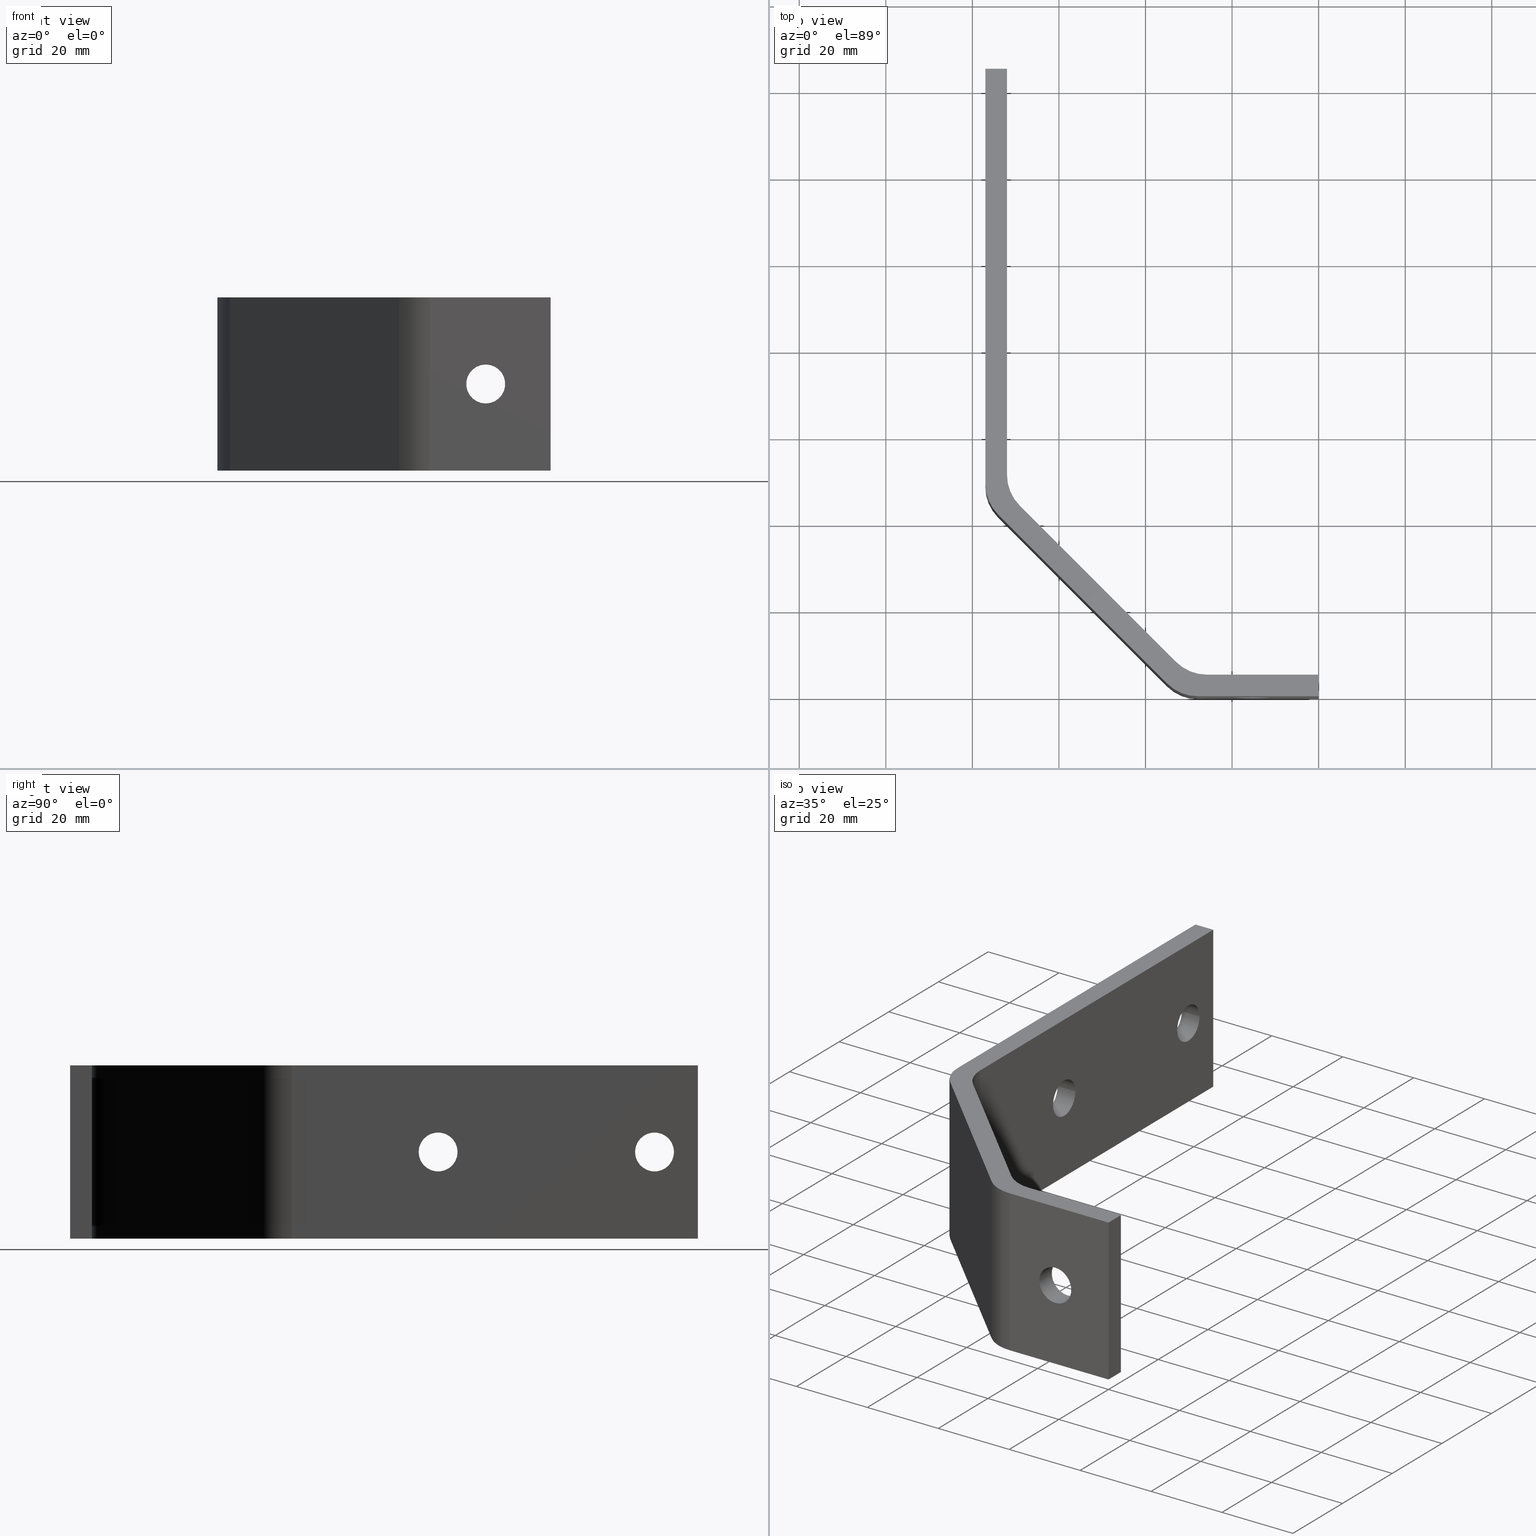
[diagram: canonical four-view strip — front | top / right | iso, engineering-drawing reading convention]
A machine part, canonical four-view strip (front | top / right | iso — engineering-drawing reading convention). The complete STEP part file that produces these views, byte-faithful:
ISO-10303-21;
HEADER;
FILE_DESCRIPTION (( 'STEP AP203' ),
    '1' );
FILE_NAME ('A47-21.STEP',
    '2018-04-03T11:41:19',
    ( 'User2' ),
    ( '' ),
    'SwSTEP 2.0',
    'SolidWorks 2007',
    '' );
FILE_SCHEMA (( 'CONFIG_CONTROL_DESIGN' ));
ENDSEC;

DATA;
#1 = DIRECTION ( 'NONE',  ( 1.000000000000000000, -1.541976423090493900E-015, 0.0000000000000000000 ) ) ;
#2 = DIRECTION ( 'NONE',  ( 0.0000000000000000000, 1.000000000000000000, 0.0000000000000000000 ) ) ;
#3 = DIRECTION ( 'NONE',  ( 0.0000000000000000000, 1.000000000000000000, 0.0000000000000000000 ) ) ;
#4 = VERTEX_POINT ( 'NONE', #542 ) ;
#5 = VERTEX_POINT ( 'NONE', #543 ) ;
#6 = VERTEX_POINT ( 'NONE', #544 ) ;
#7 = VERTEX_POINT ( 'NONE', #545 ) ;
#8 = VERTEX_POINT ( 'NONE', #546 ) ;
#9 = VERTEX_POINT ( 'NONE', #547 ) ;
#10 = VERTEX_POINT ( 'NONE', #548 ) ;
#11 = VERTEX_POINT ( 'NONE', #549 ) ;
#12 = VERTEX_POINT ( 'NONE', #550 ) ;
#13 = VERTEX_POINT ( 'NONE', #551 ) ;
#14 = VERTEX_POINT ( 'NONE', #552 ) ;
#15 = VERTEX_POINT ( 'NONE', #553 ) ;
#16 = VERTEX_POINT ( 'NONE', #554 ) ;
#17 = VERTEX_POINT ( 'NONE', #555 ) ;
#18 = VERTEX_POINT ( 'NONE', #223 ) ;
#19 = VERTEX_POINT ( 'NONE', #224 ) ;
#20 = VERTEX_POINT ( 'NONE', #225 ) ;
#21 = VERTEX_POINT ( 'NONE', #226 ) ;
#22 = VERTEX_POINT ( 'NONE', #227 ) ;
#23 = VERTEX_POINT ( 'NONE', #228 ) ;
#24 = VERTEX_POINT ( 'NONE', #229 ) ;
#25 = VERTEX_POINT ( 'NONE', #230 ) ;
#26 = VERTEX_POINT ( 'NONE', #231 ) ;
#27 = VERTEX_POINT ( 'NONE', #222 ) ;
#28 = VERTEX_POINT ( 'NONE', #221 ) ;
#29 = VERTEX_POINT ( 'NONE', #530 ) ;
#30 = VERTEX_POINT ( 'NONE', #529 ) ;
#31 = DESIGN_CONTEXT ( 'detailed design', #647, 'design' ) ;
#32 = PRODUCT_DEFINITION_SHAPE ( 'NONE', 'NONE',  #90 ) ;
#33 = CARTESIAN_POINT ( 'NONE',  ( -35.00000000140599400, 2.928932189675031300, 20.00000000000000000 ) ) ;
#34 = DIRECTION ( 'NONE',  ( -0.0000000000000000000, -0.0000000000000000000, 1.000000000000000000 ) ) ;
#35 = CARTESIAN_POINT ( 'NONE',  ( -35.00000000000000000, 2.928932188000000100, 40.00000000000000000 ) ) ;
#36 = DIRECTION ( 'NONE',  ( -0.7071067811865473500, 0.7071067811865477900, 0.0000000000000000000 ) ) ;
#37 = CARTESIAN_POINT ( 'NONE',  ( -77.00000000000000000, 139.5000000000000000, 20.00000000000000000 ) ) ;
#38 = DIRECTION ( 'NONE',  ( 1.000000000000000000, -1.541976423090493700E-015, 0.0000000000000000000 ) ) ;
#39 = CARTESIAN_POINT ( 'NONE',  ( -35.00000003499999200, 2.928932140000000100, 0.0000000000000000000 ) ) ;
#40 = DIRECTION ( 'NONE',  ( -0.7071067812317926000, 0.7071067811413024300, 0.0000000000000000000 ) ) ;
#41 = CARTESIAN_POINT ( 'NONE',  ( -13.96446609399999900, 0.0000000000000000000, 0.0000000000000000000 ) ) ;
#42 = DIRECTION ( 'NONE',  ( -1.000000000000000000, 0.0000000000000000000, 0.0000000000000000000 ) ) ;
#43 = CARTESIAN_POINT ( 'NONE',  ( -15.00000000000000000, 0.0000000000000000000, 20.00000000000000000 ) ) ;
#44 = DIRECTION ( 'NONE',  ( -0.0000000000000000000, -1.000000000000000000, -0.0000000000000000000 ) ) ;
#45 = DIRECTION ( 'NONE',  ( 0.0000000000000000000, 0.0000000000000000000, 1.000000000000000000 ) ) ;
#46 = CARTESIAN_POINT ( 'NONE',  ( -27.92893218799999700, 0.0000000000000000000, 20.00000000000000000 ) ) ;
#47 = DIRECTION ( 'NONE',  ( 0.0000000000000000000, 0.0000000000000000000, 1.000000000000000000 ) ) ;
#48 = CARTESIAN_POINT ( 'NONE',  ( -27.92893218799999700, 10.00000000000000000, 40.00000000000000000 ) ) ;
#49 = DIRECTION ( 'NONE',  ( 0.0000000000000000000, -3.469446951953610700E-016, -1.000000000000000000 ) ) ;
#50 = AXIS2_PLACEMENT_3D ( 'NONE', #48, #49, #697 ) ;
#51 = AXIS2_PLACEMENT_3D ( 'NONE', #43, #44, #45 ) ;
#52 = AXIS2_PLACEMENT_3D ( 'NONE', #214, #215, #216 ) ;
#53 = AXIS2_PLACEMENT_3D ( 'NONE', #211, #212, #213 ) ;
#54 = AXIS2_PLACEMENT_3D ( 'NONE', #208, #209, #210 ) ;
#55 = AXIS2_PLACEMENT_3D ( 'NONE', #201, #202, #203 ) ;
#56 = AXIS2_PLACEMENT_3D ( 'NONE', #565, #566, #567 ) ;
#57 = AXIS2_PLACEMENT_3D ( 'NONE', #556, #557, #558 ) ;
#58 = AXIS2_PLACEMENT_3D ( 'NONE', #585, #586, #587 ) ;
#59 = AXIS2_PLACEMENT_3D ( 'NONE', #582, #583, #584 ) ;
#60 = AXIS2_PLACEMENT_3D ( 'NONE', #579, #580, #581 ) ;
#61 = AXIS2_PLACEMENT_3D ( 'NONE', #576, #577, #578 ) ;
#62 = AXIS2_PLACEMENT_3D ( 'NONE', #220, #219, #573 ) ;
#63 = AXIS2_PLACEMENT_3D ( 'NONE', #531, #1, #2 ) ;
#64 = EDGE_CURVE ( 'NONE', #9, #537, #415, .T. ) ;
#65 = EDGE_CURVE ( 'NONE', #6, #13, #416, .T. ) ;
#66 = EDGE_CURVE ( 'NONE', #4, #13, #411, .T. ) ;
#67 = EDGE_CURVE ( 'NONE', #5, #4, #413, .T. ) ;
#68 = EDGE_CURVE ( 'NONE', #6, #5, #408, .T. ) ;
#69 = EDGE_CURVE ( 'NONE', #11, #536, #407, .T. ) ;
#70 = EDGE_CURVE ( 'NONE', #535, #12, #406, .T. ) ;
#71 = EDGE_CURVE ( 'NONE', #12, #535, #404, .T. ) ;
#72 = EDGE_CURVE ( 'NONE', #541, #534, #405, .T. ) ;
#73 = EDGE_CURVE ( 'NONE', #538, #539, #401, .T. ) ;
#74 = EDGE_CURVE ( 'NONE', #536, #539, #402, .T. ) ;
#75 = PRODUCT_RELATED_PRODUCT_CATEGORY ( 'detail', '', ( #695 ) ) ;
#76 = CC_DESIGN_SECURITY_CLASSIFICATION ( #246, ( #85 ) ) ;
#77 = CC_DESIGN_APPROVAL ( #78, ( #246 ) ) ;
#78 = APPROVAL ( #615, 'UNSPECIFIED' ) ;
#79 = CC_DESIGN_DATE_AND_TIME_ASSIGNMENT ( #241, #614, ( #246 ) ) ;
#80 = CC_DESIGN_PERSON_AND_ORGANIZATION_ASSIGNMENT ( #245, #613, ( #246 ) ) ;
#81 = CC_DESIGN_PERSON_AND_ORGANIZATION_ASSIGNMENT ( #247, #611, ( #85 ) ) ;
#82 = CC_DESIGN_PERSON_AND_ORGANIZATION_ASSIGNMENT ( #248, #610, ( #85 ) ) ;
#83 = CC_DESIGN_APPROVAL ( #84, ( #85 ) ) ;
#84 = APPROVAL ( #653, 'UNSPECIFIED' ) ;
#85 = PRODUCT_DEFINITION_FORMATION_WITH_SPECIFIED_SOURCE ( 'ANY', '', #695, .NOT_KNOWN. ) ;
#86 = CC_DESIGN_DATE_AND_TIME_ASSIGNMENT ( #256, #652, ( #90 ) ) ;
#87 = CC_DESIGN_PERSON_AND_ORGANIZATION_ASSIGNMENT ( #291, #651, ( #90 ) ) ;
#88 = CC_DESIGN_APPROVAL ( #89, ( #90 ) ) ;
#89 = APPROVAL ( #649, 'UNSPECIFIED' ) ;
#90 = PRODUCT_DEFINITION ( 'UNKNOWN', '', #85, #31 ) ;
#91 = CC_DESIGN_PERSON_AND_ORGANIZATION_ASSIGNMENT ( #232, #646, ( #695 ) ) ;
#92 = AXIS2_PLACEMENT_3D ( 'NONE', #640, #641, #642 ) ;
#93 = AXIS2_PLACEMENT_3D ( 'NONE', #634, #635, #636 ) ;
#94 = AXIS2_PLACEMENT_3D ( 'NONE', #631, #632, #633 ) ;
#95 = AXIS2_PLACEMENT_3D ( 'NONE', #628, #629, #630 ) ;
#96 = AXIS2_PLACEMENT_3D ( 'NONE', #624, #625, #626 ) ;
#97 = AXIS2_PLACEMENT_3D ( 'NONE', #621, #622, #623 ) ;
#98 = AXIS2_PLACEMENT_3D ( 'NONE', #618, #619, #620 ) ;
#99 = AXIS2_PLACEMENT_3D ( 'NONE', #692, #693, #694 ) ;
#100 = AXIS2_PLACEMENT_3D ( 'NONE', #688, #689, #690 ) ;
#101 = AXIS2_PLACEMENT_3D ( 'NONE', #684, #685, #686 ) ;
#102 = AXIS2_PLACEMENT_3D ( 'NONE', #680, #681, #682 ) ;
#103 = AXIS2_PLACEMENT_3D ( 'NONE', #677, #678, #679 ) ;
#104 = AXIS2_PLACEMENT_3D ( 'NONE', #673, #674, #675 ) ;
#105 = AXIS2_PLACEMENT_3D ( 'NONE', #669, #670, #671 ) ;
#106 = AXIS2_PLACEMENT_3D ( 'NONE', #666, #667, #668 ) ;
#107 = AXIS2_PLACEMENT_3D ( 'NONE', #662, #663, #664 ) ;
#108 = AXIS2_PLACEMENT_3D ( 'NONE', #659, #660, #661 ) ;
#109 = AXIS2_PLACEMENT_3D ( 'NONE', #655, #656, #657 ) ;
#110 = AXIS2_PLACEMENT_3D ( 'NONE', #196, #197, #198 ) ;
#111 = AXIS2_PLACEMENT_3D ( 'NONE', #183, #184, #185 ) ;
#112 = AXIS2_PLACEMENT_3D ( 'NONE', #180, #181, #182 ) ;
#113 = AXIS2_PLACEMENT_3D ( 'NONE', #731, #162, #163 ) ;
#114 = AXIS2_PLACEMENT_3D ( 'NONE', #728, #729, #730 ) ;
#115 = AXIS2_PLACEMENT_3D ( 'NONE', #721, #722, #723 ) ;
#116 = AXIS2_PLACEMENT_3D ( 'NONE', #718, #719, #720 ) ;
#117 = AXIS2_PLACEMENT_3D ( 'NONE', #715, #716, #717 ) ;
#118 = AXIS2_PLACEMENT_3D ( 'NONE', #698, #699, #700 ) ;
#119 = EDGE_CURVE ( 'NONE', #21, #27, #398, .T. ) ;
#120 = EDGE_CURVE ( 'NONE', #26, #21, #396, .T. ) ;
#121 = EDGE_CURVE ( 'NONE', #28, #21, #392, .T. ) ;
#122 = EDGE_CURVE ( 'NONE', #27, #25, #393, .T. ) ;
#123 = EDGE_CURVE ( 'NONE', #26, #23, #390, .T. ) ;
#124 = EDGE_CURVE ( 'NONE', #23, #24, #388, .T. ) ;
#125 = EDGE_CURVE ( 'NONE', #29, #27, #384, .T. ) ;
#126 = EDGE_CURVE ( 'NONE', #535, #9, #386, .T. ) ;
#127 = EDGE_CURVE ( 'NONE', #11, #538, #382, .T. ) ;
#128 = EDGE_CURVE ( 'NONE', #539, #538, #377, .T. ) ;
#129 = EDGE_CURVE ( 'NONE', #537, #9, #376, .T. ) ;
#130 = EDGE_CURVE ( 'NONE', #536, #11, #374, .T. ) ;
#131 = EDGE_CURVE ( 'NONE', #8, #7, #375, .T. ) ;
#132 = EDGE_CURVE ( 'NONE', #7, #541, #372, .T. ) ;
#133 = EDGE_CURVE ( 'NONE', #12, #537, #370, .T. ) ;
#134 = EDGE_CURVE ( 'NONE', #8, #534, #368, .T. ) ;
#135 = EDGE_CURVE ( 'NONE', #24, #20, #366, .T. ) ;
#136 = EDGE_CURVE ( 'NONE', #5, #6, #363, .T. ) ;
#137 = EDGE_CURVE ( 'NONE', #20, #22, #364, .T. ) ;
#138 = EDGE_CURVE ( 'NONE', #22, #7, #359, .T. ) ;
#139 = EDGE_CURVE ( 'NONE', #13, #4, #356, .T. ) ;
#140 = EDGE_CURVE ( 'NONE', #25, #24, #357, .T. ) ;
#141 = EDGE_CURVE ( 'NONE', #18, #29, #354, .T. ) ;
#142 = EDGE_CURVE ( 'NONE', #29, #28, #352, .T. ) ;
#143 = EDGE_CURVE ( 'NONE', #30, #28, #350, .T. ) ;
#144 = EDGE_CURVE ( 'NONE', #533, #10, #348, .T. ) ;
#145 = EDGE_CURVE ( 'NONE', #22, #23, #345, .T. ) ;
#146 = EDGE_CURVE ( 'NONE', #17, #10, #342, .T. ) ;
#147 = EDGE_CURVE ( 'NONE', #20, #8, #340, .T. ) ;
#148 = EDGE_CURVE ( 'NONE', #16, #18, #339, .T. ) ;
#149 = EDGE_CURVE ( 'NONE', #19, #30, #337, .T. ) ;
#150 = EDGE_CURVE ( 'NONE', #540, #15, #338, .T. ) ;
#151 = EDGE_CURVE ( 'NONE', #16, #19, #335, .T. ) ;
#152 = EDGE_CURVE ( 'NONE', #534, #14, #333, .T. ) ;
#153 = EDGE_CURVE ( 'NONE', #541, #540, #331, .T. ) ;
#154 = EDGE_CURVE ( 'NONE', #540, #14, #332, .T. ) ;
#155 = EDGE_CURVE ( 'NONE', #14, #533, #328, .T. ) ;
#156 = EDGE_CURVE ( 'NONE', #15, #533, #325, .T. ) ;
#157 = EDGE_CURVE ( 'NONE', #10, #16, #323, .T. ) ;
#158 = EDGE_CURVE ( 'NONE', #17, #19, #320, .T. ) ;
#159 = EDGE_CURVE ( 'NONE', #30, #18, #317, .T. ) ;
#160 = EDGE_CURVE ( 'NONE', #15, #17, #315, .T. ) ;
#161 = EDGE_CURVE ( 'NONE', #25, #26, #313, .T. ) ;
#162 = DIRECTION ( 'NONE',  ( 0.0000000000000000000, -3.469446951953617100E-016, -1.000000000000000000 ) ) ;
#163 = DIRECTION ( 'NONE',  ( 0.0000000000000000000, 1.000000000000000000, -6.938893903907232300E-016 ) ) ;
#164 = CARTESIAN_POINT ( 'NONE',  ( -77.00000000000000000, 49.07106781199999500, 20.00000000000000000 ) ) ;
#165 = DIRECTION ( 'NONE',  ( 0.0000000000000000000, 0.0000000000000000000, -1.000000000000000000 ) ) ;
#166 = CARTESIAN_POINT ( 'NONE',  ( -77.00000000000000000, 72.50000000000000000, 0.0000000000000000000 ) ) ;
#167 = DIRECTION ( 'NONE',  ( 0.0000000000000000000, 1.000000000000000000, 0.0000000000000000000 ) ) ;
#168 = CARTESIAN_POINT ( 'NONE',  ( -77.00000000000000000, 145.0000000000000000, 20.00000000000000000 ) ) ;
#169 = DIRECTION ( 'NONE',  ( 0.0000000000000000000, 0.0000000000000000000, -1.000000000000000000 ) ) ;
#170 = CARTESIAN_POINT ( 'NONE',  ( -71.99999999499999600, 72.50000000000000000, 0.0000000000000000000 ) ) ;
#171 = DIRECTION ( 'NONE',  ( -0.0000000000000000000, -1.000000000000000000, -0.0000000000000000000 ) ) ;
#172 = CARTESIAN_POINT ( 'NONE',  ( -71.99999999499999600, 72.50000000000000000, 40.00000000000000000 ) ) ;
#173 = DIRECTION ( 'NONE',  ( -0.0000000000000000000, -1.000000000000000000, -0.0000000000000000000 ) ) ;
#174 = CARTESIAN_POINT ( 'NONE',  ( -69.07106781199998100, 44.07106781199999500, 20.00000000000000000 ) ) ;
#175 = DIRECTION ( 'NONE',  ( -0.0000000000000000000, -0.0000000000000000000, -1.000000000000000000 ) ) ;
#176 = CARTESIAN_POINT ( 'NONE',  ( -38.50000000000000000, 145.0000000000000000, 40.00000000000000000 ) ) ;
#177 = DIRECTION ( 'NONE',  ( 1.000000000000000000, -0.0000000000000000000, -0.0000000000000000000 ) ) ;
#178 = CARTESIAN_POINT ( 'NONE',  ( 0.0000000000000000000, 5.000000000000000000, 20.00000000000000000 ) ) ;
#179 = DIRECTION ( 'NONE',  ( 0.0000000000000000000, 0.0000000000000000000, 1.000000000000000000 ) ) ;
#180 = CARTESIAN_POINT ( 'NONE',  ( -77.00000000000000000, 135.0000000000000000, 20.00000000000000000 ) ) ;
#181 = DIRECTION ( 'NONE',  ( 1.000000000000000000, -1.541976423090493900E-015, 0.0000000000000000000 ) ) ;
#182 = DIRECTION ( 'NONE',  ( 0.0000000000000000000, 1.000000000000000000, 0.0000000000000000000 ) ) ;
#183 = CARTESIAN_POINT ( 'NONE',  ( -15.00000000000000000, 0.0000000000000000000, 20.00000000000000000 ) ) ;
#184 = DIRECTION ( 'NONE',  ( 0.0000000000000000000, 1.000000000000000000, 0.0000000000000000000 ) ) ;
#185 = DIRECTION ( 'NONE',  ( 0.0000000000000000000, 0.0000000000000000000, 1.000000000000000000 ) ) ;
#186 = CARTESIAN_POINT ( 'NONE',  ( -77.00000000000000000, 145.0000000000000000, 0.0000000000000000000 ) ) ;
#187 = CARTESIAN_POINT ( 'NONE',  ( -74.07106783447677900, 41.99999997861128500, 2.961358217058114000E-015 ) ) ;
#188 = CARTESIAN_POINT ( 'NONE',  ( -77.00000000000001400, 130.5000000000000000, 20.00000000000000000 ) ) ;
#189 = CARTESIAN_POINT ( 'NONE',  ( -77.00000000000001400, 80.50000000000000000, 20.00000000000000000 ) ) ;
#190 = CARTESIAN_POINT ( 'NONE',  ( -72.00000000000001400, 139.5000000000000000, 20.00000000000000000 ) ) ;
#191 = CARTESIAN_POINT ( 'NONE',  ( -72.00000000000000000, 89.50000000000000000, 20.00000000000000000 ) ) ;
#192 = CARTESIAN_POINT ( 'NONE',  ( -72.00000000000002800, 80.49999999999998600, 20.00000000000000000 ) ) ;
#193 = CARTESIAN_POINT ( 'NONE',  ( -77.00000000000000000, 49.07106781199999500, 40.00000000000000000 ) ) ;
#194 = CARTESIAN_POINT ( 'NONE',  ( -74.07106781270299200, 42.00000000083753100, 40.00000000000000700 ) ) ;
#195 = PLANE ( 'NONE',  #110 ) ;
#196 = CARTESIAN_POINT ( 'NONE',  ( -77.00000000000000000, 145.0000000000000000, 40.00000000000000000 ) ) ;
#197 = DIRECTION ( 'NONE',  ( 0.0000000000000000000, -1.000000000000000000, 0.0000000000000000000 ) ) ;
#198 = DIRECTION ( 'NONE',  ( 0.0000000000000000000, 0.0000000000000000000, -1.000000000000000000 ) ) ;
#199 = PLANE ( 'NONE',  #109 ) ;
#200 = DIRECTION ( 'NONE',  ( -0.0000000000000000000, -0.0000000000000000000, -1.000000000000000000 ) ) ;
#201 = CARTESIAN_POINT ( 'NONE',  ( -25.85786437600000600, 15.00000000000000000, 0.0000000000000000000 ) ) ;
#202 = DIRECTION ( 'NONE',  ( 0.0000000000000000000, -0.0000000000000000000, 1.000000000000000000 ) ) ;
#203 = DIRECTION ( 'NONE',  ( 1.000000000000000000, 0.0000000000000000000, 0.0000000000000000000 ) ) ;
#204 = CARTESIAN_POINT ( 'NONE',  ( -77.00000000000000000, 130.5000000000000000, 20.00000000000000000 ) ) ;
#205 = DIRECTION ( 'NONE',  ( 1.000000000000000000, -1.541976423090493700E-015, 0.0000000000000000000 ) ) ;
#206 = CARTESIAN_POINT ( 'NONE',  ( -76.99999999999998600, 89.50000000000001400, 20.00000000000000000 ) ) ;
#207 = DIRECTION ( 'NONE',  ( 1.000000000000000000, -1.541976423090496200E-015, 0.0000000000000000000 ) ) ;
#208 = CARTESIAN_POINT ( 'NONE',  ( -72.00000000000001400, 84.99999999999998600, 20.00000000000000000 ) ) ;
#209 = DIRECTION ( 'NONE',  ( 1.000000000000000000, -1.541976423090496200E-015, 0.0000000000000000000 ) ) ;
#210 = DIRECTION ( 'NONE',  ( 3.083952846180988100E-015, 1.000000000000000000, 0.0000000000000000000 ) ) ;
#211 = CARTESIAN_POINT ( 'NONE',  ( -72.00000000000001400, 135.0000000000000000, 20.00000000000000000 ) ) ;
#212 = DIRECTION ( 'NONE',  ( 1.000000000000000000, -1.541976423090493900E-015, 0.0000000000000000000 ) ) ;
#213 = DIRECTION ( 'NONE',  ( 0.0000000000000000000, 1.000000000000000000, 0.0000000000000000000 ) ) ;
#214 = CARTESIAN_POINT ( 'NONE',  ( -77.00000000000000000, 85.00000000000000000, 20.00000000000000000 ) ) ;
#215 = DIRECTION ( 'NONE',  ( -1.000000000000000000, 1.541976423090496200E-015, -0.0000000000000000000 ) ) ;
#216 = DIRECTION ( 'NONE',  ( 3.083952846180988100E-015, 1.000000000000000000, 0.0000000000000000000 ) ) ;
#217 = ADVANCED_FACE ( 'NONE', ( #310 ), #309, .F. ) ;
#218 = ADVANCED_FACE ( 'NONE', ( #307 ), #306, .F. ) ;
#219 = DIRECTION ( 'NONE',  ( 0.0000000000000000000, 1.000000000000000000, 0.0000000000000000000 ) ) ;
#220 = CARTESIAN_POINT ( 'NONE',  ( -15.00000000000000000, 5.000000000000000000, 20.00000000000000000 ) ) ;
#221 = CARTESIAN_POINT ( 'NONE',  ( -32.92893218788764600, 7.928932188022149500, 40.00000000000000000 ) ) ;
#222 = CARTESIAN_POINT ( 'NONE',  ( -25.85786437600000600, 5.000000000000000900, 0.0000000000000000000 ) ) ;
#223 = CARTESIAN_POINT ( 'NONE',  ( -69.07106780773366900, 44.07106781773367000, 0.0000000000000000000 ) ) ;
#224 = CARTESIAN_POINT ( 'NONE',  ( -71.99999999749999800, 51.14213562194898100, 40.00000000000000000 ) ) ;
#225 = CARTESIAN_POINT ( 'NONE',  ( -27.92893218799999400, 1.734723475976807100E-015, -2.602085213965215400E-015 ) ) ;
#226 = CARTESIAN_POINT ( 'NONE',  ( -25.85786437600000600, 5.000000000000000900, 40.00000000000000000 ) ) ;
#227 = CARTESIAN_POINT ( 'NONE',  ( -27.92893218799999700, 1.734723475976807100E-015, 40.00000000000000700 ) ) ;
#228 = CARTESIAN_POINT ( 'NONE',  ( -1.734723475976807100E-015, 0.0000000000000000000, 40.00000000000000000 ) ) ;
#229 = CARTESIAN_POINT ( 'NONE',  ( -1.734723475976807100E-015, 0.0000000000000000000, -1.156482317317871300E-015 ) ) ;
#230 = CARTESIAN_POINT ( 'NONE',  ( 0.0000000000000000000, 5.000000000000001800, 0.0000000000000000000 ) ) ;
#231 = CARTESIAN_POINT ( 'NONE',  ( 0.0000000000000000000, 5.000000000000001800, 40.00000000000000000 ) ) ;
#232 = PERSON_AND_ORGANIZATION ( #696, #233 ) ;
#233 = ORGANIZATION ( 'UNSPECIFIED', 'UNSPECIFIED', '' ) ;
#234 = APPROVAL_DATE_TIME ( #235, #78 ) ;
#235 = DATE_AND_TIME ( #236, #237 ) ;
#236 = CALENDAR_DATE ( 2018, 3, 4 ) ;
#237 = LOCAL_TIME ( 8, 41, 19.00000000000000000, #238 ) ;
#238 = COORDINATED_UNIVERSAL_TIME_OFFSET ( 3, 0, .BEHIND. ) ;
#239 = APPROVAL_PERSON_ORGANIZATION ( #240, #78, #616 ) ;
#240 = PERSON_AND_ORGANIZATION ( #696, #233 ) ;
#241 = DATE_AND_TIME ( #242, #243 ) ;
#242 = CALENDAR_DATE ( 2018, 3, 4 ) ;
#243 = LOCAL_TIME ( 8, 41, 19.00000000000000000, #244 ) ;
#244 = COORDINATED_UNIVERSAL_TIME_OFFSET ( 3, 0, .BEHIND. ) ;
#245 = PERSON_AND_ORGANIZATION ( #696, #233 ) ;
#246 = SECURITY_CLASSIFICATION ( '', '', #612 ) ;
#247 = PERSON_AND_ORGANIZATION ( #696, #233 ) ;
#248 = PERSON_AND_ORGANIZATION ( #696, #233 ) ;
#249 = APPROVAL_DATE_TIME ( #250, #84 ) ;
#250 = DATE_AND_TIME ( #251, #252 ) ;
#251 = CALENDAR_DATE ( 2018, 3, 4 ) ;
#252 = LOCAL_TIME ( 8, 41, 19.00000000000000000, #253 ) ;
#253 = COORDINATED_UNIVERSAL_TIME_OFFSET ( 3, 0, .BEHIND. ) ;
#254 = APPROVAL_PERSON_ORGANIZATION ( #255, #84, #654 ) ;
#255 = PERSON_AND_ORGANIZATION ( #696, #233 ) ;
#256 = DATE_AND_TIME ( #257, #258 ) ;
#257 = CALENDAR_DATE ( 2018, 3, 4 ) ;
#258 = LOCAL_TIME ( 8, 41, 19.00000000000000000, #288 ) ;
#259 = SHAPE_DEFINITION_REPRESENTATION ( #32, #608 ) ;
#260 =( GEOMETRIC_REPRESENTATION_CONTEXT ( 3 ) GLOBAL_UNCERTAINTY_ASSIGNED_CONTEXT ( ( #617 ) ) GLOBAL_UNIT_ASSIGNED_CONTEXT ( ( #637, #638, #639 ) ) REPRESENTATION_CONTEXT ( 'NONE', 'WORKASPACE' ) );
#261 = CYLINDRICAL_SURFACE ( 'NONE', #93, 4.500000000000003600 ) ;
#262 = FACE_OUTER_BOUND ( 'NONE', #445, .T. ) ;
#263 = CYLINDRICAL_SURFACE ( 'NONE', #94, 4.500000000000003600 ) ;
#264 = FACE_OUTER_BOUND ( 'NONE', #443, .T. ) ;
#265 = FACE_OUTER_BOUND ( 'NONE', #442, .T. ) ;
#266 = CYLINDRICAL_SURFACE ( 'NONE', #96, 9.999999999999994700 ) ;
#267 = FACE_OUTER_BOUND ( 'NONE', #522, .T. ) ;
#268 = CYLINDRICAL_SURFACE ( 'NONE', #97, 4.500000000000003600 ) ;
#269 = FACE_OUTER_BOUND ( 'NONE', #444, .T. ) ;
#270 = CYLINDRICAL_SURFACE ( 'NONE', #98, 4.500000000000000900 ) ;
#271 = FACE_OUTER_BOUND ( 'NONE', #379, .T. ) ;
#272 = FACE_OUTER_BOUND ( 'NONE', #381, .T. ) ;
#273 = FACE_BOUND ( 'NONE', #312, .T. ) ;
#274 = FACE_OUTER_BOUND ( 'NONE', #318, .T. ) ;
#275 = FACE_BOUND ( 'NONE', #322, .T. ) ;
#276 = FACE_OUTER_BOUND ( 'NONE', #326, .T. ) ;
#277 = CYLINDRICAL_SURFACE ( 'NONE', #102, 10.00000000000000500 ) ;
#278 = FACE_OUTER_BOUND ( 'NONE', #330, .T. ) ;
#279 = FACE_OUTER_BOUND ( 'NONE', #292, .T. ) ;
#280 = CYLINDRICAL_SURFACE ( 'NONE', #105, 10.00000000000001100 ) ;
#281 = FACE_OUTER_BOUND ( 'NONE', #293, .T. ) ;
#282 = PERSON_AND_ORGANIZATION ( #696, #233 ) ;
#283 = APPROVAL_PERSON_ORGANIZATION ( #282, #89, #650 ) ;
#284 = COORDINATED_UNIVERSAL_TIME_OFFSET ( 3, 0, .BEHIND. ) ;
#285 = LOCAL_TIME ( 8, 41, 19.00000000000000000, #284 ) ;
#286 = CALENDAR_DATE ( 2018, 3, 4 ) ;
#287 = DATE_AND_TIME ( #286, #285 ) ;
#288 = COORDINATED_UNIVERSAL_TIME_OFFSET ( 3, 0, .BEHIND. ) ;
#289 = APPROVAL_DATE_TIME ( #287, #89 ) ;
#290 = FACE_OUTER_BOUND ( 'NONE', #300, .T. ) ;
#291 = PERSON_AND_ORGANIZATION ( #696, #233 ) ;
#292 = EDGE_LOOP ( 'NONE', ( #432, #433, #434, #435, #436, #437, #438, #439, #471, #472, #473, #474 ) ) ;
#293 = EDGE_LOOP ( 'NONE', ( #427, #429, #430, #431 ) ) ;
#294 = FACE_OUTER_BOUND ( 'NONE', #303, .T. ) ;
#295 = CYLINDRICAL_SURFACE ( 'NONE', #107, 9.999999999999994700 ) ;
#296 = FACE_OUTER_BOUND ( 'NONE', #308, .T. ) ;
#297 = FACE_OUTER_BOUND ( 'NONE', #528, .T. ) ;
#298 = FACE_BOUND ( 'NONE', #527, .T. ) ;
#299 = FACE_BOUND ( 'NONE', #526, .T. ) ;
#300 = EDGE_LOOP ( 'NONE', ( #421, #424, #425, #426 ) ) ;
#301 = FACE_OUTER_BOUND ( 'NONE', #524, .T. ) ;
#302 = FACE_BOUND ( 'NONE', #523, .T. ) ;
#303 = EDGE_LOOP ( 'NONE', ( #479, #480, #478, #477 ) ) ;
#304 = FACE_BOUND ( 'NONE', #521, .T. ) ;
#305 = FACE_OUTER_BOUND ( 'NONE', #525, .T. ) ;
#306 = CYLINDRICAL_SURFACE ( 'NONE', #111, 4.500000000000000900 ) ;
#307 = FACE_OUTER_BOUND ( 'NONE', #447, .T. ) ;
#308 = EDGE_LOOP ( 'NONE', ( #511, #510, #509, #508 ) ) ;
#309 = CYLINDRICAL_SURFACE ( 'NONE', #112, 4.500000000000003600 ) ;
#310 = FACE_OUTER_BOUND ( 'NONE', #446, .T. ) ;
#311 = VECTOR ( 'NONE', #179, 1000.000000000000000 ) ;
#312 = EDGE_LOOP ( 'NONE', ( #503, #491 ) ) ;
#313 = LINE ( 'NONE', #178, #311 ) ;
#314 = VECTOR ( 'NONE', #177, 1000.000000000000000 ) ;
#315 = LINE ( 'NONE', #176, #314 ) ;
#316 = VECTOR ( 'NONE', #175, 1000.000000000000000 ) ;
#317 = LINE ( 'NONE', #174, #316 ) ;
#318 = EDGE_LOOP ( 'NONE', ( #504, #492, #502, #505 ) ) ;
#319 = VECTOR ( 'NONE', #173, 1000.000000000000000 ) ;
#320 = LINE ( 'NONE', #172, #319 ) ;
#321 = VECTOR ( 'NONE', #171, 1000.000000000000000 ) ;
#322 = EDGE_LOOP ( 'NONE', ( #361, #378 ) ) ;
#323 = LINE ( 'NONE', #170, #321 ) ;
#324 = VECTOR ( 'NONE', #169, 1000.000000000000000 ) ;
#325 = LINE ( 'NONE', #168, #324 ) ;
#326 = EDGE_LOOP ( 'NONE', ( #487, #488, #489, #490, #499, #500, #501, #423, #428, #506, #507, #360 ) ) ;
#327 = VECTOR ( 'NONE', #167, 1000.000000000000000 ) ;
#328 = LINE ( 'NONE', #166, #327 ) ;
#329 = VECTOR ( 'NONE', #165, 1000.000000000000000 ) ;
#330 = EDGE_LOOP ( 'NONE', ( #475, #484, #485, #486 ) ) ;
#331 = CIRCLE ( 'NONE', #113, 9.999999999999994700 ) ;
#332 = LINE ( 'NONE', #164, #329 ) ;
#333 = CIRCLE ( 'NONE', #114, 9.999999999999994700 ) ;
#334 = VECTOR ( 'NONE', #727, 1000.000000000000000 ) ;
#335 = LINE ( 'NONE', #726, #334 ) ;
#336 = VECTOR ( 'NONE', #725, 1000.000000000000000 ) ;
#337 = CIRCLE ( 'NONE', #115, 9.999999999999994700 ) ;
#338 = LINE ( 'NONE', #724, #336 ) ;
#339 = CIRCLE ( 'NONE', #116, 9.999999999999994700 ) ;
#340 = CIRCLE ( 'NONE', #117, 10.00000000000001100 ) ;
#341 = VECTOR ( 'NONE', #714, 1000.000000000000000 ) ;
#342 = LINE ( 'NONE', #713, #341 ) ;
#343 = ORIENTED_EDGE ( 'NONE', *, *, #127, .F. ) ;
#344 = VECTOR ( 'NONE', #712, 1000.000000000000000 ) ;
#345 = LINE ( 'NONE', #711, #344 ) ;
#346 = VECTOR ( 'NONE', #710, 1000.000000000000000 ) ;
#347 = ORIENTED_EDGE ( 'NONE', *, *, #130, .T. ) ;
#348 = LINE ( 'NONE', #709, #346 ) ;
#349 = VECTOR ( 'NONE', #708, 999.9999999999998900 ) ;
#350 = LINE ( 'NONE', #707, #349 ) ;
#351 = VECTOR ( 'NONE', #706, 1000.000000000000000 ) ;
#352 = LINE ( 'NONE', #705, #351 ) ;
#353 = VECTOR ( 'NONE', #704, 1000.000000000000100 ) ;
#354 = LINE ( 'NONE', #703, #353 ) ;
#355 = VECTOR ( 'NONE', #702, 1000.000000000000000 ) ;
#356 = CIRCLE ( 'NONE', #118, 4.500000000000000900 ) ;
#357 = LINE ( 'NONE', #701, #355 ) ;
#358 = ORIENTED_EDGE ( 'NONE', *, *, #127, .T. ) ;
#359 = CIRCLE ( 'NONE', #50, 10.00000000000001100 ) ;
#360 = ORIENTED_EDGE ( 'NONE', *, *, #125, .T. ) ;
#361 = ORIENTED_EDGE ( 'NONE', *, *, #68, .F. ) ;
#362 = VECTOR ( 'NONE', #47, 1000.000000000000000 ) ;
#363 = CIRCLE ( 'NONE', #51, 4.500000000000000900 ) ;
#364 = LINE ( 'NONE', #46, #362 ) ;
#365 = VECTOR ( 'NONE', #42, 1000.000000000000000 ) ;
#366 = LINE ( 'NONE', #41, #365 ) ;
#367 = VECTOR ( 'NONE', #40, 1000.000000000000000 ) ;
#368 = LINE ( 'NONE', #39, #367 ) ;
#369 = VECTOR ( 'NONE', #38, 1000.000000000000000 ) ;
#370 = LINE ( 'NONE', #37, #369 ) ;
#371 = VECTOR ( 'NONE', #36, 1000.000000000000000 ) ;
#372 = LINE ( 'NONE', #35, #371 ) ;
#373 = VECTOR ( 'NONE', #34, 1000.000000000000000 ) ;
#374 = CIRCLE ( 'NONE', #52, 4.500000000000003600 ) ;
#375 = LINE ( 'NONE', #33, #373 ) ;
#376 = CIRCLE ( 'NONE', #53, 4.500000000000003600 ) ;
#377 = CIRCLE ( 'NONE', #54, 4.500000000000003600 ) ;
#378 = ORIENTED_EDGE ( 'NONE', *, *, #136, .F. ) ;
#379 = EDGE_LOOP ( 'NONE', ( #422, #493, #494, #441 ) ) ;
#380 = VECTOR ( 'NONE', #207, 1000.000000000000000 ) ;
#381 = EDGE_LOOP ( 'NONE', ( #418, #419, #420, #417 ) ) ;
#382 = LINE ( 'NONE', #206, #380 ) ;
#383 = VECTOR ( 'NONE', #205, 1000.000000000000000 ) ;
#384 = CIRCLE ( 'NONE', #55, 10.00000000000000500 ) ;
#385 = ORIENTED_EDGE ( 'NONE', *, *, #73, .T. ) ;
#386 = LINE ( 'NONE', #204, #383 ) ;
#387 = VECTOR ( 'NONE', #200, 1000.000000000000000 ) ;
#388 = LINE ( 'NONE', #572, #387 ) ;
#389 = VECTOR ( 'NONE', #571, 1000.000000000000000 ) ;
#390 = LINE ( 'NONE', #570, #389 ) ;
#391 = VECTOR ( 'NONE', #569, 1000.000000000000000 ) ;
#392 = CIRCLE ( 'NONE', #56, 10.00000000000000500 ) ;
#393 = LINE ( 'NONE', #568, #391 ) ;
#394 = VECTOR ( 'NONE', #564, 1000.000000000000000 ) ;
#395 = ORIENTED_EDGE ( 'NONE', *, *, #126, .F. ) ;
#396 = LINE ( 'NONE', #563, #394 ) ;
#397 = VECTOR ( 'NONE', #562, 1000.000000000000000 ) ;
#398 = LINE ( 'NONE', #561, #397 ) ;
#399 = ORIENTED_EDGE ( 'NONE', *, *, #70, .T. ) ;
#400 = VECTOR ( 'NONE', #560, 1000.000000000000000 ) ;
#401 = CIRCLE ( 'NONE', #57, 4.500000000000003600 ) ;
#402 = LINE ( 'NONE', #559, #400 ) ;
#403 = VECTOR ( 'NONE', #589, 1000.000000000000000 ) ;
#404 = CIRCLE ( 'NONE', #58, 4.500000000000003600 ) ;
#405 = LINE ( 'NONE', #588, #403 ) ;
#406 = CIRCLE ( 'NONE', #59, 4.500000000000003600 ) ;
#407 = CIRCLE ( 'NONE', #60, 4.500000000000003600 ) ;
#408 = CIRCLE ( 'NONE', #61, 4.500000000000000900 ) ;
#409 = ORIENTED_EDGE ( 'NONE', *, *, #133, .T. ) ;
#410 = VECTOR ( 'NONE', #575, 1000.000000000000000 ) ;
#411 = CIRCLE ( 'NONE', #62, 4.500000000000000900 ) ;
#412 = ORIENTED_EDGE ( 'NONE', *, *, #129, .T. ) ;
#413 = LINE ( 'NONE', #574, #410 ) ;
#414 = VECTOR ( 'NONE', #3, 1000.000000000000000 ) ;
#415 = CIRCLE ( 'NONE', #63, 4.500000000000003600 ) ;
#416 = LINE ( 'NONE', #532, #414 ) ;
#417 = ORIENTED_EDGE ( 'NONE', *, *, #122, .F. ) ;
#418 = ORIENTED_EDGE ( 'NONE', *, *, #119, .F. ) ;
#419 = ORIENTED_EDGE ( 'NONE', *, *, #120, .F. ) ;
#420 = ORIENTED_EDGE ( 'NONE', *, *, #161, .F. ) ;
#421 = ORIENTED_EDGE ( 'NONE', *, *, #131, .F. ) ;
#422 = ORIENTED_EDGE ( 'NONE', *, *, #67, .F. ) ;
#423 = ORIENTED_EDGE ( 'NONE', *, *, #144, .T. ) ;
#424 = ORIENTED_EDGE ( 'NONE', *, *, #147, .F. ) ;
#425 = ORIENTED_EDGE ( 'NONE', *, *, #137, .T. ) ;
#426 = ORIENTED_EDGE ( 'NONE', *, *, #138, .T. ) ;
#427 = ORIENTED_EDGE ( 'NONE', *, *, #161, .T. ) ;
#428 = ORIENTED_EDGE ( 'NONE', *, *, #157, .T. ) ;
#429 = ORIENTED_EDGE ( 'NONE', *, *, #123, .T. ) ;
#430 = ORIENTED_EDGE ( 'NONE', *, *, #124, .T. ) ;
#431 = ORIENTED_EDGE ( 'NONE', *, *, #140, .F. ) ;
#432 = ORIENTED_EDGE ( 'NONE', *, *, #138, .F. ) ;
#433 = ORIENTED_EDGE ( 'NONE', *, *, #145, .T. ) ;
#434 = ORIENTED_EDGE ( 'NONE', *, *, #123, .F. ) ;
#435 = ORIENTED_EDGE ( 'NONE', *, *, #120, .T. ) ;
#436 = ORIENTED_EDGE ( 'NONE', *, *, #121, .F. ) ;
#437 = ORIENTED_EDGE ( 'NONE', *, *, #143, .F. ) ;
#438 = ORIENTED_EDGE ( 'NONE', *, *, #149, .F. ) ;
#439 = ORIENTED_EDGE ( 'NONE', *, *, #158, .F. ) ;
#440 = ORIENTED_EDGE ( 'NONE', *, *, #68, .T. ) ;
#441 = ORIENTED_EDGE ( 'NONE', *, *, #139, .T. ) ;
#442 = EDGE_LOOP ( 'NONE', ( #450, #453, #452, #459 ) ) ;
#443 = EDGE_LOOP ( 'NONE', ( #395, #399, #409, #412 ) ) ;
#444 = EDGE_LOOP ( 'NONE', ( #468, #347, #358, #385 ) ) ;
#445 = EDGE_LOOP ( 'NONE', ( #481, #449, #460, #343 ) ) ;
#446 = EDGE_LOOP ( 'NONE', ( #495, #498, #497, #476 ) ) ;
#447 = EDGE_LOOP ( 'NONE', ( #440, #482, #483, #496 ) ) ;
#448 = ORIENTED_EDGE ( 'NONE', *, *, #160, .T. ) ;
#449 = ORIENTED_EDGE ( 'NONE', *, *, #74, .T. ) ;
#450 = ORIENTED_EDGE ( 'NONE', *, *, #131, .T. ) ;
#451 = ORIENTED_EDGE ( 'NONE', *, *, #72, .F. ) ;
#452 = ORIENTED_EDGE ( 'NONE', *, *, #72, .T. ) ;
#453 = ORIENTED_EDGE ( 'NONE', *, *, #132, .T. ) ;
#454 = ORIENTED_EDGE ( 'NONE', *, *, #153, .T. ) ;
#455 = ORIENTED_EDGE ( 'NONE', *, *, #156, .F. ) ;
#456 = ORIENTED_EDGE ( 'NONE', *, *, #155, .F. ) ;
#457 = ORIENTED_EDGE ( 'NONE', *, *, #152, .F. ) ;
#458 = ORIENTED_EDGE ( 'NONE', *, *, #154, .T. ) ;
#459 = ORIENTED_EDGE ( 'NONE', *, *, #134, .F. ) ;
#460 = ORIENTED_EDGE ( 'NONE', *, *, #128, .T. ) ;
#461 = ORIENTED_EDGE ( 'NONE', *, *, #156, .T. ) ;
#462 = ORIENTED_EDGE ( 'NONE', *, *, #150, .T. ) ;
#463 = ORIENTED_EDGE ( 'NONE', *, *, #154, .F. ) ;
#464 = ORIENTED_EDGE ( 'NONE', *, *, #130, .F. ) ;
#465 = ORIENTED_EDGE ( 'NONE', *, *, #69, .F. ) ;
#466 = ORIENTED_EDGE ( 'NONE', *, *, #71, .F. ) ;
#467 = ORIENTED_EDGE ( 'NONE', *, *, #70, .F. ) ;
#468 = ORIENTED_EDGE ( 'NONE', *, *, #74, .F. ) ;
#469 = ORIENTED_EDGE ( 'NONE', *, *, #146, .T. ) ;
#470 = CLOSED_SHELL ( 'NONE', ( #218, #217, #609, #604, #607, #606, #605, #591, #590, #592, #593, #594, #595, #596, #597, #598, #599, #600, #601, #602 ) ) ;
#471 = ORIENTED_EDGE ( 'NONE', *, *, #160, .F. ) ;
#472 = ORIENTED_EDGE ( 'NONE', *, *, #150, .F. ) ;
#473 = ORIENTED_EDGE ( 'NONE', *, *, #153, .F. ) ;
#474 = ORIENTED_EDGE ( 'NONE', *, *, #132, .F. ) ;
#475 = ORIENTED_EDGE ( 'NONE', *, *, #125, .F. ) ;
#476 = ORIENTED_EDGE ( 'NONE', *, *, #133, .F. ) ;
#477 = ORIENTED_EDGE ( 'NONE', *, *, #143, .T. ) ;
#478 = ORIENTED_EDGE ( 'NONE', *, *, #159, .F. ) ;
#479 = ORIENTED_EDGE ( 'NONE', *, *, #142, .F. ) ;
#480 = ORIENTED_EDGE ( 'NONE', *, *, #141, .F. ) ;
#481 = ORIENTED_EDGE ( 'NONE', *, *, #69, .T. ) ;
#482 = ORIENTED_EDGE ( 'NONE', *, *, #67, .T. ) ;
#483 = ORIENTED_EDGE ( 'NONE', *, *, #66, .T. ) ;
#484 = ORIENTED_EDGE ( 'NONE', *, *, #142, .T. ) ;
#485 = ORIENTED_EDGE ( 'NONE', *, *, #121, .T. ) ;
#486 = ORIENTED_EDGE ( 'NONE', *, *, #119, .T. ) ;
#487 = ORIENTED_EDGE ( 'NONE', *, *, #122, .T. ) ;
#488 = ORIENTED_EDGE ( 'NONE', *, *, #140, .T. ) ;
#489 = ORIENTED_EDGE ( 'NONE', *, *, #135, .T. ) ;
#490 = ORIENTED_EDGE ( 'NONE', *, *, #147, .T. ) ;
#491 = ORIENTED_EDGE ( 'NONE', *, *, #66, .F. ) ;
#492 = ORIENTED_EDGE ( 'NONE', *, *, #135, .F. ) ;
#493 = ORIENTED_EDGE ( 'NONE', *, *, #136, .T. ) ;
#494 = ORIENTED_EDGE ( 'NONE', *, *, #65, .T. ) ;
#495 = ORIENTED_EDGE ( 'NONE', *, *, #71, .T. ) ;
#496 = ORIENTED_EDGE ( 'NONE', *, *, #65, .F. ) ;
#497 = ORIENTED_EDGE ( 'NONE', *, *, #64, .T. ) ;
#498 = ORIENTED_EDGE ( 'NONE', *, *, #126, .T. ) ;
#499 = ORIENTED_EDGE ( 'NONE', *, *, #134, .T. ) ;
#500 = ORIENTED_EDGE ( 'NONE', *, *, #152, .T. ) ;
#501 = ORIENTED_EDGE ( 'NONE', *, *, #155, .T. ) ;
#502 = ORIENTED_EDGE ( 'NONE', *, *, #124, .F. ) ;
#503 = ORIENTED_EDGE ( 'NONE', *, *, #139, .F. ) ;
#504 = ORIENTED_EDGE ( 'NONE', *, *, #137, .F. ) ;
#505 = ORIENTED_EDGE ( 'NONE', *, *, #145, .F. ) ;
#506 = ORIENTED_EDGE ( 'NONE', *, *, #148, .T. ) ;
#507 = ORIENTED_EDGE ( 'NONE', *, *, #141, .T. ) ;
#508 = ORIENTED_EDGE ( 'NONE', *, *, #159, .T. ) ;
#509 = ORIENTED_EDGE ( 'NONE', *, *, #149, .T. ) ;
#510 = ORIENTED_EDGE ( 'NONE', *, *, #151, .T. ) ;
#511 = ORIENTED_EDGE ( 'NONE', *, *, #148, .F. ) ;
#512 = ORIENTED_EDGE ( 'NONE', *, *, #158, .T. ) ;
#513 = ORIENTED_EDGE ( 'NONE', *, *, #146, .F. ) ;
#514 = ORIENTED_EDGE ( 'NONE', *, *, #157, .F. ) ;
#515 = ORIENTED_EDGE ( 'NONE', *, *, #151, .F. ) ;
#516 = ORIENTED_EDGE ( 'NONE', *, *, #128, .F. ) ;
#517 = ORIENTED_EDGE ( 'NONE', *, *, #73, .F. ) ;
#518 = ORIENTED_EDGE ( 'NONE', *, *, #64, .F. ) ;
#519 = ORIENTED_EDGE ( 'NONE', *, *, #129, .F. ) ;
#520 = ORIENTED_EDGE ( 'NONE', *, *, #144, .F. ) ;
#521 = EDGE_LOOP ( 'NONE', ( #466, #467 ) ) ;
#522 = EDGE_LOOP ( 'NONE', ( #458, #457, #451, #454 ) ) ;
#523 = EDGE_LOOP ( 'NONE', ( #465, #464 ) ) ;
#524 = EDGE_LOOP ( 'NONE', ( #463, #462, #461, #456 ) ) ;
#525 = EDGE_LOOP ( 'NONE', ( #455, #448, #469, #520 ) ) ;
#526 = EDGE_LOOP ( 'NONE', ( #519, #518 ) ) ;
#527 = EDGE_LOOP ( 'NONE', ( #517, #516 ) ) ;
#528 = EDGE_LOOP ( 'NONE', ( #515, #514, #513, #512 ) ) ;
#529 = CARTESIAN_POINT ( 'NONE',  ( -69.07106781199999500, 44.07106781200000300, 40.00000000000000000 ) ) ;
#530 = CARTESIAN_POINT ( 'NONE',  ( -32.92893218737130900, 7.928932190005824900, 0.0000000000000000000 ) ) ;
#531 = CARTESIAN_POINT ( 'NONE',  ( -72.00000000000001400, 135.0000000000000000, 20.00000000000000000 ) ) ;
#532 = CARTESIAN_POINT ( 'NONE',  ( -15.00000000000000000, 0.0000000000000000000, 24.50000000000000000 ) ) ;
#533 = VERTEX_POINT ( 'NONE', #186 ) ;
#534 = VERTEX_POINT ( 'NONE', #187 ) ;
#535 = VERTEX_POINT ( 'NONE', #188 ) ;
#536 = VERTEX_POINT ( 'NONE', #189 ) ;
#537 = VERTEX_POINT ( 'NONE', #190 ) ;
#538 = VERTEX_POINT ( 'NONE', #191 ) ;
#539 = VERTEX_POINT ( 'NONE', #192 ) ;
#540 = VERTEX_POINT ( 'NONE', #193 ) ;
#541 = VERTEX_POINT ( 'NONE', #194 ) ;
#542 = CARTESIAN_POINT ( 'NONE',  ( -15.00000000000000000, 5.000000000000000000, 15.50000000000000000 ) ) ;
#543 = CARTESIAN_POINT ( 'NONE',  ( -15.00000000000000000, 0.0000000000000000000, 15.50000000000000000 ) ) ;
#544 = CARTESIAN_POINT ( 'NONE',  ( -15.00000000000000000, 0.0000000000000000000, 24.50000000000000000 ) ) ;
#545 = CARTESIAN_POINT ( 'NONE',  ( -35.00000000070299700, 2.928932188837515900, 40.00000000000000700 ) ) ;
#546 = CARTESIAN_POINT ( 'NONE',  ( -35.00000002122676800, 2.928932167861288100, -3.977535687282798100E-015 ) ) ;
#547 = CARTESIAN_POINT ( 'NONE',  ( -72.00000000000001400, 130.5000000000000000, 20.00000000000000000 ) ) ;
#548 = CARTESIAN_POINT ( 'NONE',  ( -71.99999999666667300, 145.0000000000000000, 0.0000000000000000000 ) ) ;
#549 = CARTESIAN_POINT ( 'NONE',  ( -76.99999999999998600, 89.50000000000001400, 20.00000000000000000 ) ) ;
#550 = CARTESIAN_POINT ( 'NONE',  ( -77.00000000000000000, 139.5000000000000000, 20.00000000000000000 ) ) ;
#551 = CARTESIAN_POINT ( 'NONE',  ( -15.00000000000000000, 5.000000000000000000, 24.50000000000000000 ) ) ;
#552 = CARTESIAN_POINT ( 'NONE',  ( -77.00000000000000000, 49.07106781199998800, 0.0000000000000000000 ) ) ;
#553 = CARTESIAN_POINT ( 'NONE',  ( -77.00000000000000000, 145.0000000000000000, 40.00000000000000000 ) ) ;
#554 = CARTESIAN_POINT ( 'NONE',  ( -71.99999999749999800, 51.14213562194898100, 0.0000000000000000000 ) ) ;
#555 = CARTESIAN_POINT ( 'NONE',  ( -71.99999999750001200, 145.0000000000000000, 40.00000000000000700 ) ) ;
#556 = CARTESIAN_POINT ( 'NONE',  ( -72.00000000000001400, 84.99999999999998600, 20.00000000000000000 ) ) ;
#557 = DIRECTION ( 'NONE',  ( 1.000000000000000000, -1.541976423090496200E-015, 0.0000000000000000000 ) ) ;
#558 = DIRECTION ( 'NONE',  ( 3.083952846180988100E-015, 1.000000000000000000, 0.0000000000000000000 ) ) ;
#559 = CARTESIAN_POINT ( 'NONE',  ( -77.00000000000001400, 80.50000000000000000, 20.00000000000000000 ) ) ;
#560 = DIRECTION ( 'NONE',  ( 1.000000000000000000, -1.541976423090496200E-015, 0.0000000000000000000 ) ) ;
#561 = CARTESIAN_POINT ( 'NONE',  ( -25.85786437600000600, 5.000000000000000000, 20.00000000000000000 ) ) ;
#562 = DIRECTION ( 'NONE',  ( -0.0000000000000000000, -0.0000000000000000000, -1.000000000000000000 ) ) ;
#563 = CARTESIAN_POINT ( 'NONE',  ( -12.92893218800000300, 5.000000000000000000, 40.00000000000000000 ) ) ;
#564 = DIRECTION ( 'NONE',  ( -1.000000000000000000, -0.0000000000000000000, -0.0000000000000000000 ) ) ;
#565 = CARTESIAN_POINT ( 'NONE',  ( -25.85786437600000600, 15.00000000000000000, 40.00000000000000000 ) ) ;
#566 = DIRECTION ( 'NONE',  ( 0.0000000000000000000, -0.0000000000000000000, 1.000000000000000000 ) ) ;
#567 = DIRECTION ( 'NONE',  ( 1.000000000000000000, 0.0000000000000000000, 0.0000000000000000000 ) ) ;
#568 = CARTESIAN_POINT ( 'NONE',  ( -12.92893218800000300, 5.000000000000000000, 0.0000000000000000000 ) ) ;
#569 = DIRECTION ( 'NONE',  ( 1.000000000000000000, 0.0000000000000000000, 0.0000000000000000000 ) ) ;
#570 = CARTESIAN_POINT ( 'NONE',  ( 0.0000000000000000000, 72.50000000000000000, 40.00000000000000000 ) ) ;
#571 = DIRECTION ( 'NONE',  ( -0.0000000000000000000, -1.000000000000000000, -0.0000000000000000000 ) ) ;
#572 = CARTESIAN_POINT ( 'NONE',  ( 0.0000000000000000000, 0.0000000000000000000, 20.00000000000000000 ) ) ;
#573 = DIRECTION ( 'NONE',  ( 0.0000000000000000000, 0.0000000000000000000, 1.000000000000000000 ) ) ;
#574 = CARTESIAN_POINT ( 'NONE',  ( -15.00000000000000000, 0.0000000000000000000, 15.50000000000000000 ) ) ;
#575 = DIRECTION ( 'NONE',  ( 0.0000000000000000000, 1.000000000000000000, 0.0000000000000000000 ) ) ;
#576 = CARTESIAN_POINT ( 'NONE',  ( -15.00000000000000000, 0.0000000000000000000, 20.00000000000000000 ) ) ;
#577 = DIRECTION ( 'NONE',  ( -0.0000000000000000000, -1.000000000000000000, -0.0000000000000000000 ) ) ;
#578 = DIRECTION ( 'NONE',  ( 0.0000000000000000000, 0.0000000000000000000, 1.000000000000000000 ) ) ;
#579 = CARTESIAN_POINT ( 'NONE',  ( -77.00000000000000000, 85.00000000000000000, 20.00000000000000000 ) ) ;
#580 = DIRECTION ( 'NONE',  ( -1.000000000000000000, 1.541976423090496200E-015, -0.0000000000000000000 ) ) ;
#581 = DIRECTION ( 'NONE',  ( 3.083952846180988100E-015, 1.000000000000000000, 0.0000000000000000000 ) ) ;
#582 = CARTESIAN_POINT ( 'NONE',  ( -77.00000000000000000, 135.0000000000000000, 20.00000000000000000 ) ) ;
#583 = DIRECTION ( 'NONE',  ( -1.000000000000000000, 1.541976423090493900E-015, -0.0000000000000000000 ) ) ;
#584 = DIRECTION ( 'NONE',  ( 0.0000000000000000000, 1.000000000000000000, 0.0000000000000000000 ) ) ;
#585 = CARTESIAN_POINT ( 'NONE',  ( -77.00000000000000000, 135.0000000000000000, 20.00000000000000000 ) ) ;
#586 = DIRECTION ( 'NONE',  ( -1.000000000000000000, 1.541976423090493900E-015, -0.0000000000000000000 ) ) ;
#587 = DIRECTION ( 'NONE',  ( 0.0000000000000000000, 1.000000000000000000, 0.0000000000000000000 ) ) ;
#588 = CARTESIAN_POINT ( 'NONE',  ( -74.07106781340600300, 42.00000000167504800, 20.00000000000000000 ) ) ;
#589 = DIRECTION ( 'NONE',  ( 0.0000000000000000000, 0.0000000000000000000, -1.000000000000000000 ) ) ;
#590 = ADVANCED_FACE ( 'NONE', ( #305 ), #195, .F. ) ;
#591 = ADVANCED_FACE ( 'NONE', ( #304, #302, #301 ), #199, .F. ) ;
#592 = ADVANCED_FACE ( 'NONE', ( #299, #298, #297 ), #658, .F. ) ;
#593 = ADVANCED_FACE ( 'NONE', ( #296 ), #295, .F. ) ;
#594 = ADVANCED_FACE ( 'NONE', ( #294 ), #665, .F. ) ;
#595 = ADVANCED_FACE ( 'NONE', ( #290 ), #280, .T. ) ;
#596 = ADVANCED_FACE ( 'NONE', ( #281 ), #672, .F. ) ;
#597 = ADVANCED_FACE ( 'NONE', ( #279 ), #676, .F. ) ;
#598 = ADVANCED_FACE ( 'NONE', ( #278 ), #277, .F. ) ;
#599 = ADVANCED_FACE ( 'NONE', ( #276 ), #683, .T. ) ;
#600 = ADVANCED_FACE ( 'NONE', ( #275, #274 ), #687, .F. ) ;
#601 = ADVANCED_FACE ( 'NONE', ( #273, #272 ), #691, .F. ) ;
#602 = ADVANCED_FACE ( 'NONE', ( #271 ), #270, .F. ) ;
#603 = MANIFOLD_SOLID_BREP ( 'NONE', #470 ) ;
#604 = ADVANCED_FACE ( 'NONE', ( #269 ), #268, .F. ) ;
#605 = ADVANCED_FACE ( 'NONE', ( #267 ), #266, .T. ) ;
#606 = ADVANCED_FACE ( 'NONE', ( #265 ), #627, .F. ) ;
#607 = ADVANCED_FACE ( 'NONE', ( #264 ), #263, .F. ) ;
#608 = ADVANCED_BREP_SHAPE_REPRESENTATION ( 'A47-21', ( #603, #92 ), #260 ) ;
#609 = ADVANCED_FACE ( 'NONE', ( #262 ), #261, .F. ) ;
#610 = PERSON_AND_ORGANIZATION_ROLE ( 'creator' ) ;
#611 = PERSON_AND_ORGANIZATION_ROLE ( 'design_supplier' ) ;
#612 = SECURITY_CLASSIFICATION_LEVEL ( 'unclassified' ) ;
#613 = PERSON_AND_ORGANIZATION_ROLE ( 'classification_officer' ) ;
#614 = DATE_TIME_ROLE ( 'classification_date' ) ;
#615 = APPROVAL_STATUS ( 'not_yet_approved' ) ;
#616 = APPROVAL_ROLE ( '' ) ;
#617 = UNCERTAINTY_MEASURE_WITH_UNIT (LENGTH_MEASURE( 1.000000000000000100E-005 ), #637, 'distance_accuracy_value', 'NONE');
#618 = CARTESIAN_POINT ( 'NONE',  ( -15.00000000000000000, 0.0000000000000000000, 20.00000000000000000 ) ) ;
#619 = DIRECTION ( 'NONE',  ( 0.0000000000000000000, 1.000000000000000000, 0.0000000000000000000 ) ) ;
#620 = DIRECTION ( 'NONE',  ( 0.0000000000000000000, 0.0000000000000000000, 1.000000000000000000 ) ) ;
#621 = CARTESIAN_POINT ( 'NONE',  ( -77.00000000000000000, 85.00000000000000000, 20.00000000000000000 ) ) ;
#622 = DIRECTION ( 'NONE',  ( 1.000000000000000000, -1.541976423090496200E-015, 0.0000000000000000000 ) ) ;
#623 = DIRECTION ( 'NONE',  ( 3.083952846180988100E-015, 1.000000000000000000, 0.0000000000000000000 ) ) ;
#624 = CARTESIAN_POINT ( 'NONE',  ( -67.00000000000000000, 49.07106781199999500, 40.00000000000000000 ) ) ;
#625 = DIRECTION ( 'NONE',  ( 0.0000000000000000000, -3.469446951953617100E-016, -1.000000000000000000 ) ) ;
#626 = DIRECTION ( 'NONE',  ( 0.0000000000000000000, 1.000000000000000000, -6.938893903907232300E-016 ) ) ;
#627 = PLANE ( 'NONE',  #95 ) ;
#628 = CARTESIAN_POINT ( 'NONE',  ( -35.00000000000000000, 2.928932188000000100, 0.0000000000000000000 ) ) ;
#629 = DIRECTION ( 'NONE',  ( 0.7071067811865477900, 0.7071067811865472400, -0.0000000000000000000 ) ) ;
#630 = DIRECTION ( 'NONE',  ( -0.7071067811865472400, 0.7071067811865477900, 0.0000000000000000000 ) ) ;
#631 = CARTESIAN_POINT ( 'NONE',  ( -77.00000000000000000, 135.0000000000000000, 20.00000000000000000 ) ) ;
#632 = DIRECTION ( 'NONE',  ( 1.000000000000000000, -1.541976423090493900E-015, 0.0000000000000000000 ) ) ;
#633 = DIRECTION ( 'NONE',  ( 0.0000000000000000000, 1.000000000000000000, 0.0000000000000000000 ) ) ;
#634 = CARTESIAN_POINT ( 'NONE',  ( -77.00000000000000000, 85.00000000000000000, 20.00000000000000000 ) ) ;
#635 = DIRECTION ( 'NONE',  ( 1.000000000000000000, -1.541976423090496200E-015, 0.0000000000000000000 ) ) ;
#636 = DIRECTION ( 'NONE',  ( 3.083952846180988100E-015, 1.000000000000000000, 0.0000000000000000000 ) ) ;
#637 =( LENGTH_UNIT ( ) NAMED_UNIT ( * ) SI_UNIT ( .MILLI., .METRE. ) );
#638 =( NAMED_UNIT ( * ) PLANE_ANGLE_UNIT ( ) SI_UNIT ( $, .RADIAN. ) );
#639 =( NAMED_UNIT ( * ) SI_UNIT ( $, .STERADIAN. ) SOLID_ANGLE_UNIT ( ) );
#640 = CARTESIAN_POINT ( 'NONE',  ( 0.0000000000000000000, 0.0000000000000000000, 0.0000000000000000000 ) ) ;
#641 = DIRECTION ( 'NONE',  ( 0.0000000000000000000, 0.0000000000000000000, 1.000000000000000000 ) ) ;
#642 = DIRECTION ( 'NONE',  ( 1.000000000000000000, 0.0000000000000000000, 0.0000000000000000000 ) ) ;
#643 = APPLICATION_CONTEXT ( 'configuration controlled 3d designs of mechanical parts and assemblies' ) ;
#644 = APPLICATION_PROTOCOL_DEFINITION ( 'international standard', 'config_control_design', 1994, #643 ) ;
#645 = MECHANICAL_CONTEXT ( 'NONE', #643, 'mechanical' ) ;
#646 = PERSON_AND_ORGANIZATION_ROLE ( 'design_owner' ) ;
#647 = APPLICATION_CONTEXT ( 'configuration controlled 3d designs of mechanical parts and assemblies' ) ;
#648 = APPLICATION_PROTOCOL_DEFINITION ( 'international standard', 'config_control_design', 1994, #647 ) ;
#649 = APPROVAL_STATUS ( 'not_yet_approved' ) ;
#650 = APPROVAL_ROLE ( '' ) ;
#651 = PERSON_AND_ORGANIZATION_ROLE ( 'creator' ) ;
#652 = DATE_TIME_ROLE ( 'creation_date' ) ;
#653 = APPROVAL_STATUS ( 'not_yet_approved' ) ;
#654 = APPROVAL_ROLE ( '' ) ;
#655 = CARTESIAN_POINT ( 'NONE',  ( -77.00000000000000000, 49.07106781199999500, 40.00000000000000000 ) ) ;
#656 = DIRECTION ( 'NONE',  ( 1.000000000000000000, -0.0000000000000000000, 0.0000000000000000000 ) ) ;
#657 = DIRECTION ( 'NONE',  ( 0.0000000000000000000, 0.0000000000000000000, -1.000000000000000000 ) ) ;
#658 = PLANE ( 'NONE',  #108 ) ;
#659 = CARTESIAN_POINT ( 'NONE',  ( -72.00000000000001400, 51.14213562400001900, 0.0000000000000000000 ) ) ;
#660 = DIRECTION ( 'NONE',  ( -1.000000000000000000, 0.0000000000000000000, 0.0000000000000000000 ) ) ;
#661 = DIRECTION ( 'NONE',  ( 0.0000000000000000000, 0.0000000000000000000, 1.000000000000000000 ) ) ;
#662 = CARTESIAN_POINT ( 'NONE',  ( -62.00000000000000000, 51.14213562400001900, 0.0000000000000000000 ) ) ;
#663 = DIRECTION ( 'NONE',  ( 0.0000000000000000000, -0.0000000000000000000, 1.000000000000000000 ) ) ;
#664 = DIRECTION ( 'NONE',  ( 1.000000000000000000, 0.0000000000000000000, 0.0000000000000000000 ) ) ;
#665 = PLANE ( 'NONE',  #106 ) ;
#666 = CARTESIAN_POINT ( 'NONE',  ( -69.07106781199998100, 44.07106781199999500, 0.0000000000000000000 ) ) ;
#667 = DIRECTION ( 'NONE',  ( -0.7071067811865479100, -0.7071067811865472400, 0.0000000000000000000 ) ) ;
#668 = DIRECTION ( 'NONE',  ( 0.7071067811865472400, -0.7071067811865479100, 0.0000000000000000000 ) ) ;
#669 = CARTESIAN_POINT ( 'NONE',  ( -27.92893218799999700, 10.00000000000000000, 40.00000000000000000 ) ) ;
#670 = DIRECTION ( 'NONE',  ( 0.0000000000000000000, -3.469446951953610700E-016, -1.000000000000000000 ) ) ;
#671 = DIRECTION ( 'NONE',  ( 0.0000000000000000000, 1.000000000000000000, -6.938893903907221500E-016 ) ) ;
#672 = PLANE ( 'NONE',  #104 ) ;
#673 = CARTESIAN_POINT ( 'NONE',  ( 0.0000000000000000000, 0.0000000000000000000, 0.0000000000000000000 ) ) ;
#674 = DIRECTION ( 'NONE',  ( -1.000000000000000000, 0.0000000000000000000, 0.0000000000000000000 ) ) ;
#675 = DIRECTION ( 'NONE',  ( 0.0000000000000000000, 0.0000000000000000000, 1.000000000000000000 ) ) ;
#676 = PLANE ( 'NONE',  #103 ) ;
#677 = CARTESIAN_POINT ( 'NONE',  ( 0.0000000000000000000, 0.0000000000000000000, 40.00000000000000000 ) ) ;
#678 = DIRECTION ( 'NONE',  ( 0.0000000000000000000, 0.0000000000000000000, -1.000000000000000000 ) ) ;
#679 = DIRECTION ( 'NONE',  ( -1.000000000000000000, 0.0000000000000000000, 0.0000000000000000000 ) ) ;
#680 = CARTESIAN_POINT ( 'NONE',  ( -25.85786437600000600, 15.00000000000000000, 0.0000000000000000000 ) ) ;
#681 = DIRECTION ( 'NONE',  ( 0.0000000000000000000, -0.0000000000000000000, 1.000000000000000000 ) ) ;
#682 = DIRECTION ( 'NONE',  ( 1.000000000000000000, 0.0000000000000000000, 0.0000000000000000000 ) ) ;
#683 = PLANE ( 'NONE',  #101 ) ;
#684 = CARTESIAN_POINT ( 'NONE',  ( 0.0000000000000000000, 0.0000000000000000000, 0.0000000000000000000 ) ) ;
#685 = DIRECTION ( 'NONE',  ( 0.0000000000000000000, 0.0000000000000000000, -1.000000000000000000 ) ) ;
#686 = DIRECTION ( 'NONE',  ( -1.000000000000000000, 0.0000000000000000000, 0.0000000000000000000 ) ) ;
#687 = PLANE ( 'NONE',  #100 ) ;
#688 = CARTESIAN_POINT ( 'NONE',  ( 0.0000000000000000000, 0.0000000000000000000, 0.0000000000000000000 ) ) ;
#689 = DIRECTION ( 'NONE',  ( 0.0000000000000000000, 1.000000000000000000, -0.0000000000000000000 ) ) ;
#690 = DIRECTION ( 'NONE',  ( -1.000000000000000000, 0.0000000000000000000, 0.0000000000000000000 ) ) ;
#691 = PLANE ( 'NONE',  #99 ) ;
#692 = CARTESIAN_POINT ( 'NONE',  ( -25.85786437600000600, 5.000000000000000000, 0.0000000000000000000 ) ) ;
#693 = DIRECTION ( 'NONE',  ( 0.0000000000000000000, -1.000000000000000000, 0.0000000000000000000 ) ) ;
#694 = DIRECTION ( 'NONE',  ( 1.000000000000000000, 0.0000000000000000000, 0.0000000000000000000 ) ) ;
#695 = PRODUCT ( 'A47-21', 'A47-21', '', ( #645 ) ) ;
#696 = PERSON ( 'UNSPECIFIED', 'UNSPECIFIED', 'UNSPECIFIED', ('UNSPECIFIED'), ('UNSPECIFIED'), ('UNSPECIFIED') ) ;
#697 = DIRECTION ( 'NONE',  ( 0.0000000000000000000, 1.000000000000000000, -6.938893903907221500E-016 ) ) ;
#698 = CARTESIAN_POINT ( 'NONE',  ( -15.00000000000000000, 5.000000000000000000, 20.00000000000000000 ) ) ;
#699 = DIRECTION ( 'NONE',  ( 0.0000000000000000000, 1.000000000000000000, 0.0000000000000000000 ) ) ;
#700 = DIRECTION ( 'NONE',  ( 0.0000000000000000000, 0.0000000000000000000, 1.000000000000000000 ) ) ;
#701 = CARTESIAN_POINT ( 'NONE',  ( 0.0000000000000000000, 72.50000000000000000, 0.0000000000000000000 ) ) ;
#702 = DIRECTION ( 'NONE',  ( -0.0000000000000000000, -1.000000000000000000, -0.0000000000000000000 ) ) ;
#703 = CARTESIAN_POINT ( 'NONE',  ( -69.07106783500000800, 44.07106785500001000, 0.0000000000000000000 ) ) ;
#704 = DIRECTION ( 'NONE',  ( 0.7071067810398130600, -0.7071067813332820900, 0.0000000000000000000 ) ) ;
#705 = CARTESIAN_POINT ( 'NONE',  ( -32.92893218777526700, 7.928932188044305100, 19.99999999999999600 ) ) ;
#706 = DIRECTION ( 'NONE',  ( 0.0000000000000000000, 0.0000000000000000000, 1.000000000000000000 ) ) ;
#707 = CARTESIAN_POINT ( 'NONE',  ( -69.07106781199998100, 44.07106781199999500, 40.00000000000000000 ) ) ;
#708 = DIRECTION ( 'NONE',  ( 0.7071067811865472400, -0.7071067811865479100, 0.0000000000000000000 ) ) ;
#709 = CARTESIAN_POINT ( 'NONE',  ( -38.50000000000000000, 145.0000000000000000, 0.0000000000000000000 ) ) ;
#710 = DIRECTION ( 'NONE',  ( 1.000000000000000000, -0.0000000000000000000, -0.0000000000000000000 ) ) ;
#711 = CARTESIAN_POINT ( 'NONE',  ( -13.96446609399999900, 0.0000000000000000000, 40.00000000000000000 ) ) ;
#712 = DIRECTION ( 'NONE',  ( 1.000000000000000000, -0.0000000000000000000, -0.0000000000000000000 ) ) ;
#713 = CARTESIAN_POINT ( 'NONE',  ( -72.00000000000001400, 145.0000000000000000, 20.00000000000000000 ) ) ;
#714 = DIRECTION ( 'NONE',  ( -0.0000000000000000000, -0.0000000000000000000, -1.000000000000000000 ) ) ;
#715 = CARTESIAN_POINT ( 'NONE',  ( -27.92893218799999700, 9.999999999999985800, -6.938893903907228400E-015 ) ) ;
#716 = DIRECTION ( 'NONE',  ( 0.0000000000000000000, -3.469446951953610700E-016, -1.000000000000000000 ) ) ;
#717 = DIRECTION ( 'NONE',  ( 0.0000000000000000000, 1.000000000000000000, -3.469446951953610700E-016 ) ) ;
#718 = CARTESIAN_POINT ( 'NONE',  ( -62.00000000000000000, 51.14213562400001900, 0.0000000000000000000 ) ) ;
#719 = DIRECTION ( 'NONE',  ( 0.0000000000000000000, -0.0000000000000000000, 1.000000000000000000 ) ) ;
#720 = DIRECTION ( 'NONE',  ( 1.000000000000000000, 0.0000000000000000000, 0.0000000000000000000 ) ) ;
#721 = CARTESIAN_POINT ( 'NONE',  ( -62.00000000000000000, 51.14213562400001900, 40.00000000000000000 ) ) ;
#722 = DIRECTION ( 'NONE',  ( 0.0000000000000000000, -0.0000000000000000000, 1.000000000000000000 ) ) ;
#723 = DIRECTION ( 'NONE',  ( 1.000000000000000000, 0.0000000000000000000, 0.0000000000000000000 ) ) ;
#724 = CARTESIAN_POINT ( 'NONE',  ( -77.00000000000000000, 72.50000000000000000, 40.00000000000000000 ) ) ;
#725 = DIRECTION ( 'NONE',  ( 0.0000000000000000000, 1.000000000000000000, 0.0000000000000000000 ) ) ;
#726 = CARTESIAN_POINT ( 'NONE',  ( -72.00000000000000000, 51.14213561989795000, 20.00000000000000000 ) ) ;
#727 = DIRECTION ( 'NONE',  ( 0.0000000000000000000, 0.0000000000000000000, 1.000000000000000000 ) ) ;
#728 = CARTESIAN_POINT ( 'NONE',  ( -67.00000000000000000, 49.07106781199998100, 0.0000000000000000000 ) ) ;
#729 = DIRECTION ( 'NONE',  ( 0.0000000000000000000, -3.469446951953617100E-016, -1.000000000000000000 ) ) ;
#730 = DIRECTION ( 'NONE',  ( 0.0000000000000000000, 1.000000000000000000, -3.469446951953617600E-016 ) ) ;
#731 = CARTESIAN_POINT ( 'NONE',  ( -67.00000000000000000, 49.07106781199999500, 40.00000000000000000 ) ) ;
ENDSEC;
END-ISO-10303-21;
